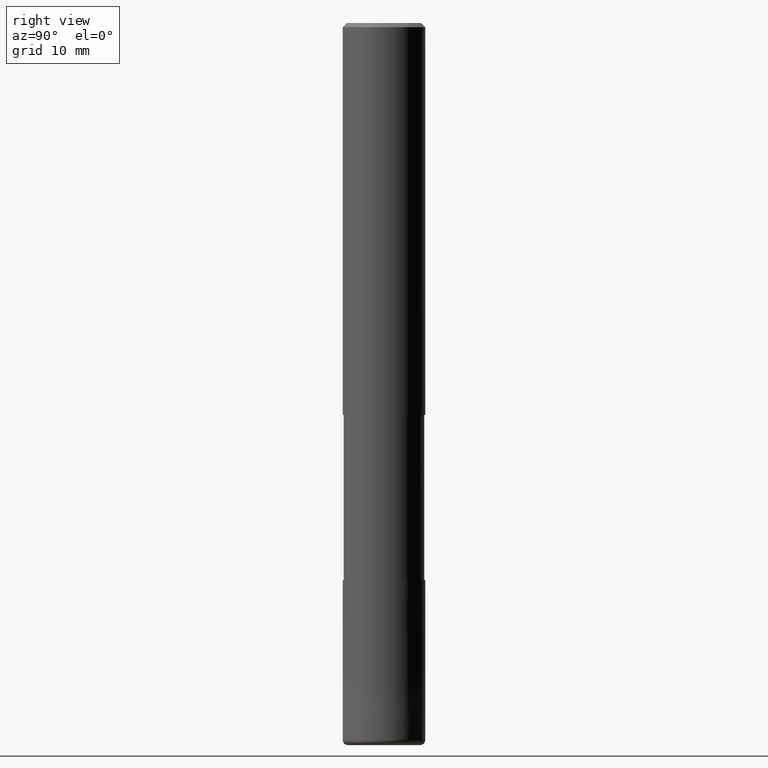
[diagram: clean part render]
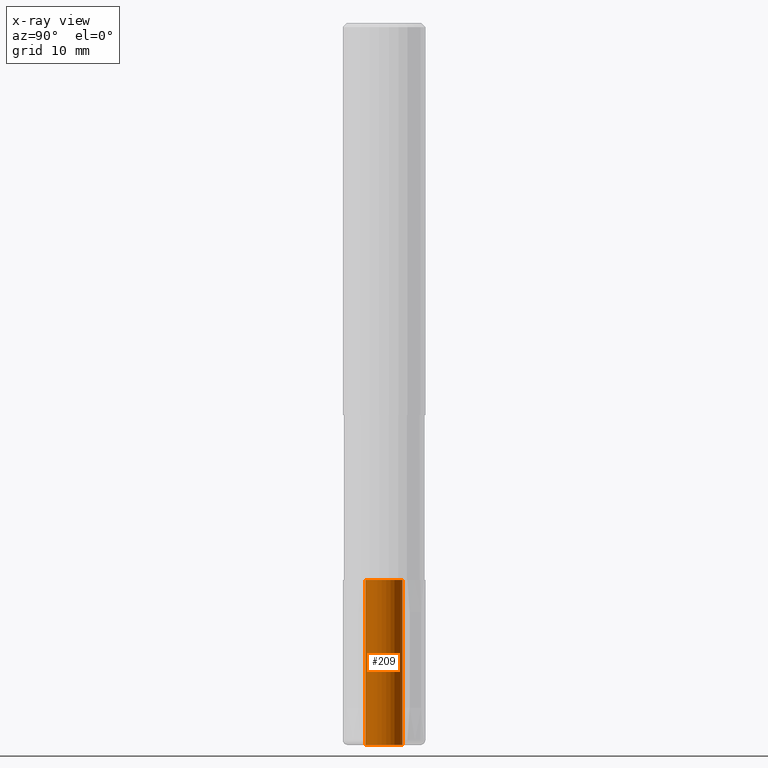
[diagram: x-ray — body ghosted, one internal face saturated and labeled with its STEP entity id]
A machine part, right view, then the same camera in x-ray: the body is ghosted and one INTERNAL B-rep face — a face not visible from any outside direction — is saturated and labeled: STEP entity #209.
In plain terms, the highlighted cylindrical surface (edge-blend (fillet) strip) has radius 1.8 mm, axis along (-0, -0, 1).
Its self-contained STEP definition (entity closure, byte-faithful):
#129=VERTEX_POINT('',#317);
#163=VERTEX_POINT('',#354);
#175=EDGE_CURVE('',#279,#163,#366,.T.);
#183=EDGE_CURVE('',#129,#257,#377,.T.);
#189=EDGE_CURVE('',#129,#163,#383,.T.);
#209=ADVANCED_FACE('',(#407),#408,.F.);
#235=EDGE_CURVE('',#257,#279,#439,.T.);
#257=VERTEX_POINT('',#465);
#279=VERTEX_POINT('',#490);
#317=CARTESIAN_POINT('',(0.0,1.8,-54.0));
#354=CARTESIAN_POINT('',(2.20429143688028E-016,-1.8,-54.0));
#366=LINE('',#587,#588);
#377=LINE('',#600,#601);
#383=CIRCLE('',#610,1.8);
#407=FACE_OUTER_BOUND('',#639,.T.);
#408=CYLINDRICAL_SURFACE('',#640,1.8);
#439=CIRCLE('',#677,1.8);
#465=CARTESIAN_POINT('',(0.0,1.8,-70.0));
#490=CARTESIAN_POINT('',(2.20429143688028E-016,-1.8,-70.0));
#587=CARTESIAN_POINT('',(2.20429143688028E-016,-1.8,-62.0));
#588=VECTOR('',#806,1.0);
#600=CARTESIAN_POINT('',(-2.20429143688028E-016,1.8,-62.0));
#601=VECTOR('',#829,1.0);
#610=AXIS2_PLACEMENT_3D('',#836,#837,#838);
#639=EDGE_LOOP('',(#874,#875,#876,#877));
#640=AXIS2_PLACEMENT_3D('',#878,#879,#880);
#677=AXIS2_PLACEMENT_3D('',#923,#924,#925);
#806=DIRECTION('',(0.0,-0.0,1.0));
#829=DIRECTION('',(0.0,-0.0,-1.0));
#836=CARTESIAN_POINT('',(0.0,0.0,-54.0));
#837=DIRECTION('',(0.0,0.0,-1.0));
#838=DIRECTION('',(0.0,1.0,0.0));
#874=ORIENTED_EDGE('',*,*,#183,.T.);
#875=ORIENTED_EDGE('',*,*,#235,.T.);
#876=ORIENTED_EDGE('',*,*,#175,.T.);
#877=ORIENTED_EDGE('',*,*,#189,.F.);
#878=CARTESIAN_POINT('',(0.0,0.0,-62.0));
#879=DIRECTION('',(-0.0,-0.0,1.0));
#880=DIRECTION('',(0.0,1.0,0.0));
#923=CARTESIAN_POINT('',(0.0,0.0,-70.0));
#924=DIRECTION('',(0.0,0.0,-1.0));
#925=DIRECTION('',(0.0,1.0,0.0));